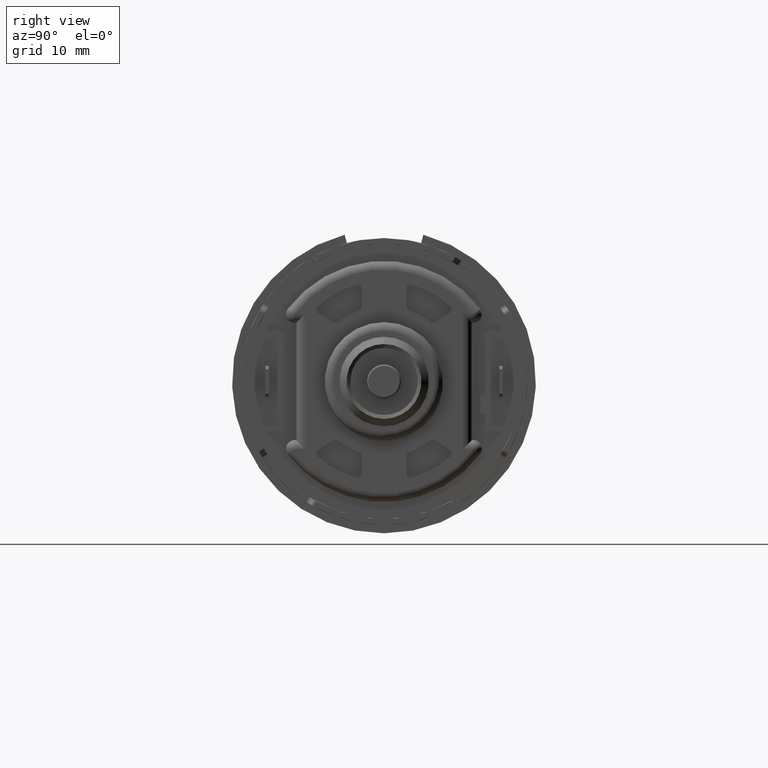
[diagram: clean part render]
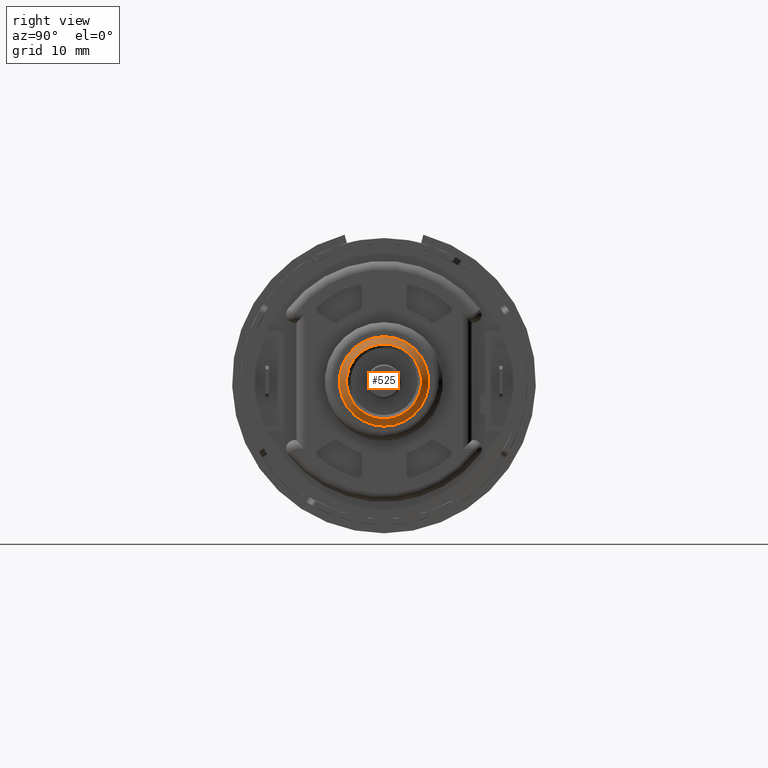
[diagram: same view with one face highlighted and labeled with its STEP entity id]
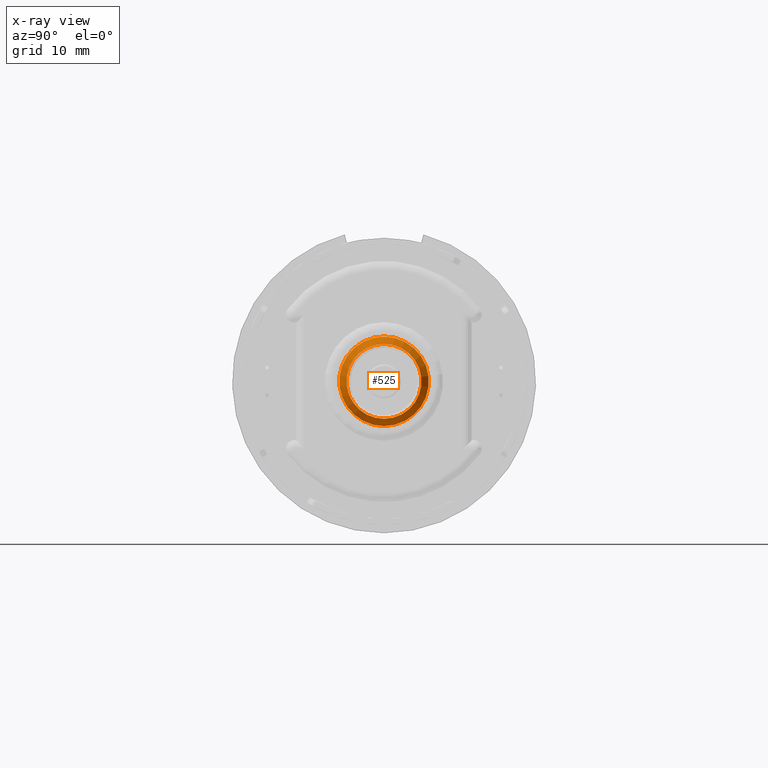
[diagram: x-ray of the same camera — body ghosted, the highlighted face saturated]
A machine part, right view. The second image highlights one B-rep face of the part: STEP entity #525.
The next image is the same camera in x-ray: the body ghosted, the highlighted face saturated — about 0% of this face is hidden behind the body in this view.
In plain terms, the highlighted conical surface has half-angle 27.979 deg.
Its self-contained STEP definition (entity closure, byte-faithful):
#18 = DIRECTION ( 'NONE',  ( 0.0000000000000000000, 0.0000000000000000000, -1.000000000000000000 ) ) ;
#226 = AXIS2_PLACEMENT_3D ( 'NONE', #13590, #15524, #18003 ) ;
#525 = ADVANCED_FACE ( 'NONE', ( #1568, #2013 ), #15962, .T. ) ;
#1285 = VERTEX_POINT ( 'NONE', #12692 ) ;
#1568 = FACE_BOUND ( 'NONE', #12126, .T. ) ;
#2013 = FACE_OUTER_BOUND ( 'NONE', #3116, .T. ) ;
#2044 = CARTESIAN_POINT ( 'NONE',  ( 2.839125984251968049, 0.0000000000000000000, 0.0000000000000000000 ) ) ;
#2173 = EDGE_CURVE ( 'NONE', #2190, #2190, #5613, .T. ) ;
#2190 = VERTEX_POINT ( 'NONE', #5485 ) ;
#3116 = EDGE_LOOP ( 'NONE', ( #6335 ) ) ;
#3519 = DIRECTION ( 'NONE',  ( 0.0000000000000000000, 0.0000000000000000000, 1.000000000000000000 ) ) ;
#3815 = ORIENTED_EDGE ( 'NONE', *, *, #12714, .T. ) ;
#5485 = CARTESIAN_POINT ( 'NONE',  ( 2.759125984251967978, 0.0000000000000000000, -0.2599999999999999534 ) ) ;
#5613 = CIRCLE ( 'NONE', #14224, 0.2599999999999999534 ) ;
#6335 = ORIENTED_EDGE ( 'NONE', *, *, #2173, .T. ) ;
#8655 = DIRECTION ( 'NONE',  ( 1.000000000000000000, 0.0000000000000000000, 0.0000000000000000000 ) ) ;
#12113 = DIRECTION ( 'NONE',  ( -1.000000000000000000, -0.0000000000000000000, -0.0000000000000000000 ) ) ;
#12126 = EDGE_LOOP ( 'NONE', ( #3815 ) ) ;
#12692 = CARTESIAN_POINT ( 'NONE',  ( 2.839125984251968049, 0.0000000000000000000, 0.2174999999999999989 ) ) ;
#12714 = EDGE_CURVE ( 'NONE', #1285, #1285, #15433, .T. ) ;
#13323 = AXIS2_PLACEMENT_3D ( 'NONE', #2044, #12113, #3519 ) ;
#13590 = CARTESIAN_POINT ( 'NONE',  ( 2.759125984251967978, 0.0000000000000000000, 0.0000000000000000000 ) ) ;
#14224 = AXIS2_PLACEMENT_3D ( 'NONE', #17267, #8655, #18 ) ;
#15433 = CIRCLE ( 'NONE', #13323, 0.2174999999999999989 ) ;
#15524 = DIRECTION ( 'NONE',  ( -1.000000000000000000, -0.0000000000000000000, -0.0000000000000000000 ) ) ;
#15962 = CONICAL_SURFACE ( 'NONE', #226, 0.2599999999999999534, 0.4883339510564039254 ) ;
#17267 = CARTESIAN_POINT ( 'NONE',  ( 2.759125984251967978, 0.0000000000000000000, 0.0000000000000000000 ) ) ;
#18003 = DIRECTION ( 'NONE',  ( 0.0000000000000000000, 0.0000000000000000000, 1.000000000000000000 ) ) ;